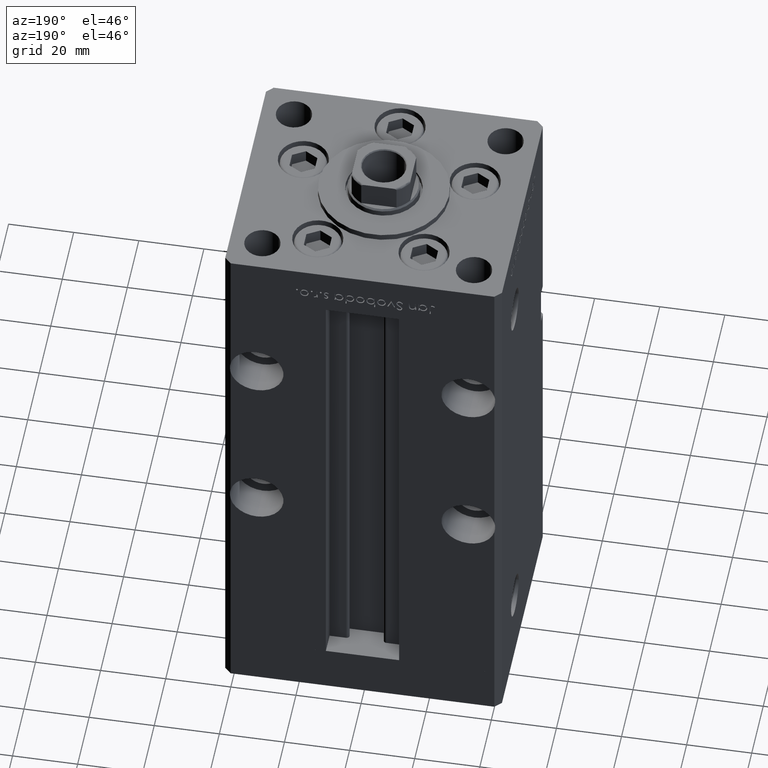
[diagram: clean part render]
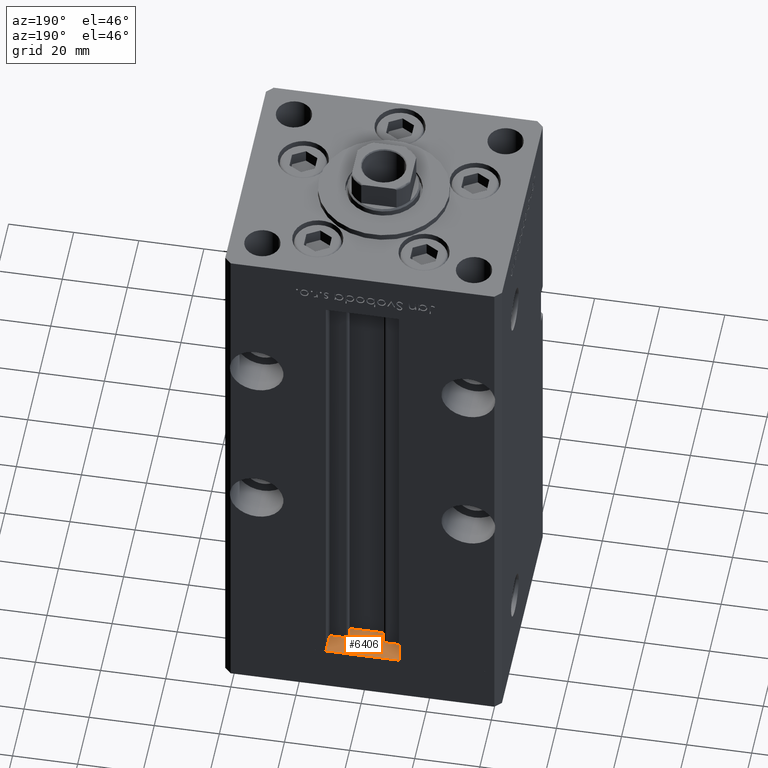
[diagram: same view with one face highlighted and labeled with its STEP entity id]
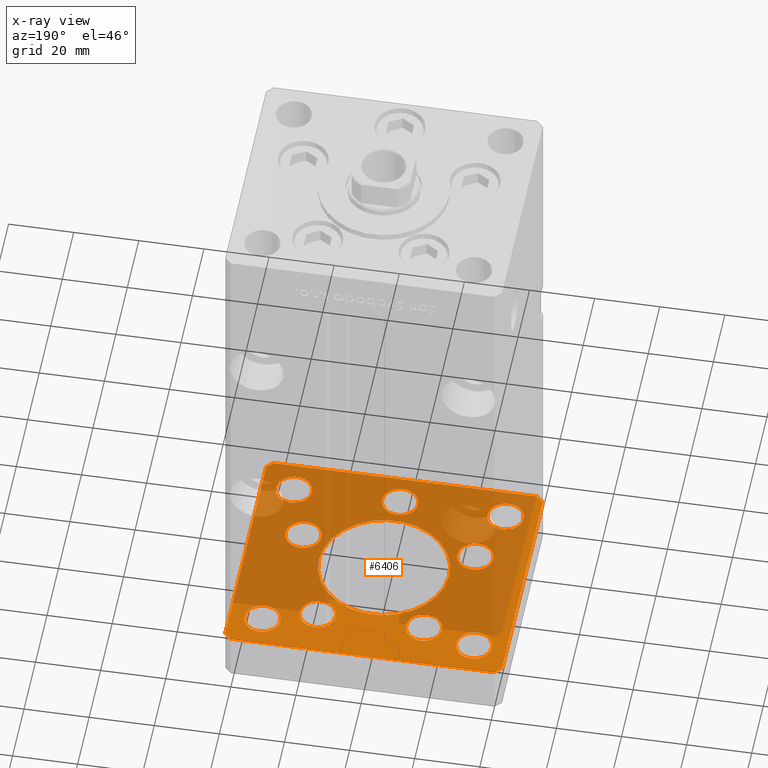
[diagram: x-ray of the same camera — body ghosted, the highlighted face saturated]
A machine part, auxiliary view. The second image highlights one B-rep face of the part: STEP entity #6406.
The next image is the same camera in x-ray: the body ghosted, the highlighted face saturated — about 72% of this face is hidden behind the body in this view.
In plain terms, the highlighted planar face has unit normal (0, 0, -1).
Its self-contained STEP definition (entity closure, byte-faithful):
#37 = CARTESIAN_POINT ( 'NONE',  ( 42.49999999999992895, 35.50000000000000000, -15.00000000000000000 ) ) ;
#631 = DIRECTION ( 'NONE',  ( 0.000000000000000000, -0.000000000000000000, -1.000000000000000000 ) ) ;
#1153 = VERTEX_POINT ( 'NONE', #18283 ) ;
#1231 = VERTEX_POINT ( 'NONE', #23652 ) ;
#1886 = VERTEX_POINT ( 'NONE', #26748 ) ;
#1916 = EDGE_CURVE ( 'NONE', #7529, #49890, #11524, .T. ) ;
#2171 = CARTESIAN_POINT ( 'NONE',  ( -42.50000000000000711, 35.49999999999997158, -15.00000000000000000 ) ) ;
#2275 = VECTOR ( 'NONE', #30948, 1000.000000000000000 ) ;
#3002 = EDGE_CURVE ( 'NONE', #49890, #7529, #48450, .T. ) ;
#3037 = VERTEX_POINT ( 'NONE', #39913 ) ;
#3091 = CIRCLE ( 'NONE', #39999, 5.499999999999998224 ) ;
#3232 = EDGE_LOOP ( 'NONE', ( #15819, #24313 ) ) ;
#3387 = CARTESIAN_POINT ( 'NONE',  ( 3.429011037612589276E-15, -28.00000000000000000, -15.00000000000000000 ) ) ;
#3448 = ORIENTED_EDGE ( 'NONE', *, *, #34120, .F. ) ;
#3499 = ORIENTED_EDGE ( 'NONE', *, *, #31492, .F. ) ;
#3505 = AXIS2_PLACEMENT_3D ( 'NONE', #46983, #30333, #10176 ) ;
#3540 = AXIS2_PLACEMENT_3D ( 'NONE', #47115, #10310, #26706 ) ;
#3618 = CARTESIAN_POINT ( 'NONE',  ( 32.50000000000000000, -27.49999999999999645, -15.00000000000000000 ) ) ;
#3757 = ORIENTED_EDGE ( 'NONE', *, *, #47385, .T. ) ;
#3907 = DIRECTION ( 'NONE',  ( 1.000000000000000000, 0.000000000000000000, 0.000000000000000000 ) ) ;
#4145 = EDGE_CURVE ( 'NONE', #17129, #27152, #47500, .T. ) ;
#4433 = VERTEX_POINT ( 'NONE', #45331 ) ;
#5278 = CARTESIAN_POINT ( 'NONE',  ( 40.49999999999991473, 37.50000000000000711, -15.00000000000000000 ) ) ;
#5738 = VERTEX_POINT ( 'NONE', #7371 ) ;
#5775 = CARTESIAN_POINT ( 'NONE',  ( 0.000000000000000000, 0.000000000000000000, -15.00000000000000000 ) ) ;
#6001 = CIRCLE ( 'NONE', #30014, 5.499999999999998224 ) ;
#6039 = CARTESIAN_POINT ( 'NONE',  ( -21.82291334290543361, 22.74999999999999645, -15.00000000000000000 ) ) ;
#6290 = DIRECTION ( 'NONE',  ( 1.000000000000000000, 0.000000000000000000, 0.000000000000000000 ) ) ;
#6310 = FACE_BOUND ( 'NONE', #3232, .T. ) ;
#6406 = ADVANCED_FACE ( 'NONE', ( #18144, #39364, #14110, #38557, #6310, #27276, #35076, #14379, #14655, #10068, #30757 ), #42840, .F. ) ;
#6918 = AXIS2_PLACEMENT_3D ( 'NONE', #52806, #631, #16792 ) ;
#6943 = ORIENTED_EDGE ( 'NONE', *, *, #48053, .F. ) ;
#6965 = CARTESIAN_POINT ( 'NONE',  ( 0.000000000000000000, 0.000000000000000000, -15.00000000000000000 ) ) ;
#7371 = CARTESIAN_POINT ( 'NONE',  ( 27.00000000000000355, 27.49999999999999645, -15.00000000000000000 ) ) ;
#7470 = ORIENTED_EDGE ( 'NONE', *, *, #41857, .F. ) ;
#7529 = VERTEX_POINT ( 'NONE', #18094 ) ;
#7772 = DIRECTION ( 'NONE',  ( 0.000000000000000000, 0.000000000000000000, 1.000000000000000000 ) ) ;
#7794 = EDGE_CURVE ( 'NONE', #51463, #42269, #40578, .T. ) ;
#8260 = ORIENTED_EDGE ( 'NONE', *, *, #40542, .F. ) ;
#8988 = VECTOR ( 'NONE', #50986, 1000.000000000000000 ) ;
#9016 = ORIENTED_EDGE ( 'NONE', *, *, #30206, .F. ) ;
#9069 = CIRCLE ( 'NONE', #15130, 5.500000000000000000 ) ;
#9326 = CIRCLE ( 'NONE', #14497, 5.499999999999998224 ) ;
#9646 = CARTESIAN_POINT ( 'NONE',  ( -5.499999999999996447, -28.00000000000000000, -15.00000000000000000 ) ) ;
#10068 = FACE_BOUND ( 'NONE', #18004, .T. ) ;
#10176 = DIRECTION ( 'NONE',  ( 1.000000000000000000, 0.000000000000000000, 0.000000000000000000 ) ) ;
#10181 = DIRECTION ( 'NONE',  ( 1.000000000000000000, 0.000000000000000000, 0.000000000000000000 ) ) ;
#10310 = DIRECTION ( 'NONE',  ( 0.000000000000000000, -0.000000000000000000, -1.000000000000000000 ) ) ;
#10497 = EDGE_CURVE ( 'NONE', #33199, #39314, #9069, .T. ) ;
#10590 = CARTESIAN_POINT ( 'NONE',  ( -32.50000000000000000, 27.50000000000000355, -15.00000000000000000 ) ) ;
#10675 = CARTESIAN_POINT ( 'NONE',  ( -32.50000000000000000, -27.49999999999999645, -15.00000000000000000 ) ) ;
#10896 = DIRECTION ( 'NONE',  ( 0.000000000000000000, -0.000000000000000000, -1.000000000000000000 ) ) ;
#11168 = DIRECTION ( 'NONE',  ( 1.000000000000000000, 0.000000000000000000, 0.000000000000000000 ) ) ;
#11226 = DIRECTION ( 'NONE',  ( 0.7071067811865463515, -0.7071067811865487940, 0.000000000000000000 ) ) ;
#11313 = EDGE_CURVE ( 'NONE', #35360, #1153, #42505, .T. ) ;
#11478 = EDGE_CURVE ( 'NONE', #33756, #1231, #42546, .T. ) ;
#11524 = CIRCLE ( 'NONE', #32134, 5.499999999999998224 ) ;
#11545 = CARTESIAN_POINT ( 'NONE',  ( 42.49999999999992895, 35.50000000000000000, -15.00000000000000000 ) ) ;
#11579 = ORIENTED_EDGE ( 'NONE', *, *, #4145, .F. ) ;
#11754 = CARTESIAN_POINT ( 'NONE',  ( -42.50000000000000711, 35.49999999999997158, -15.00000000000000000 ) ) ;
#12444 = AXIS2_PLACEMENT_3D ( 'NONE', #48497, #10896, #47428 ) ;
#12460 = CARTESIAN_POINT ( 'NONE',  ( -27.00000000000000355, -27.49999999999999645, -15.00000000000000000 ) ) ;
#12523 = DIRECTION ( 'NONE',  ( 0.000000000000000000, 0.000000000000000000, 1.000000000000000000 ) ) ;
#12721 = DIRECTION ( 'NONE',  ( -0.000000000000000000, -0.000000000000000000, -1.000000000000000000 ) ) ;
#12990 = EDGE_LOOP ( 'NONE', ( #51315, #46908 ) ) ;
#13217 = EDGE_LOOP ( 'NONE', ( #29270, #3499 ) ) ;
#13269 = CARTESIAN_POINT ( 'NONE',  ( 32.50000000000000000, 27.49999999999999645, -15.00000000000000000 ) ) ;
#13483 = EDGE_CURVE ( 'NONE', #48552, #40690, #38996, .T. ) ;
#13537 = DIRECTION ( 'NONE',  ( -1.000000000000000000, 0.000000000000000000, 0.000000000000000000 ) ) ;
#13776 = EDGE_CURVE ( 'NONE', #33187, #38152, #16054, .T. ) ;
#13806 = DIRECTION ( 'NONE',  ( 1.000000000000000000, 0.000000000000000000, 0.000000000000000000 ) ) ;
#14110 = FACE_BOUND ( 'NONE', #51452, .T. ) ;
#14325 = AXIS2_PLACEMENT_3D ( 'NONE', #34231, #29645, #13537 ) ;
#14379 = FACE_BOUND ( 'NONE', #52163, .T. ) ;
#14497 = AXIS2_PLACEMENT_3D ( 'NONE', #16037, #12523, #23822 ) ;
#14655 = FACE_OUTER_BOUND ( 'NONE', #24855, .T. ) ;
#14675 = VECTOR ( 'NONE', #23638, 1000.000000000000114 ) ;
#15130 = AXIS2_PLACEMENT_3D ( 'NONE', #3387, #40724, #3907 ) ;
#15242 = CARTESIAN_POINT ( 'NONE',  ( 26.39865316429776954, -9.333333333333330373, -15.00000000000000000 ) ) ;
#15819 = ORIENTED_EDGE ( 'NONE', *, *, #11313, .F. ) ;
#16037 = CARTESIAN_POINT ( 'NONE',  ( -32.50000000000000000, 27.50000000000000355, -15.00000000000000000 ) ) ;
#16054 = CIRCLE ( 'NONE', #46048, 5.499999999999998224 ) ;
#16263 = CARTESIAN_POINT ( 'NONE',  ( 40.49999999999991473, 37.50000000000000711, -15.00000000000000000 ) ) ;
#16266 = DIRECTION ( 'NONE',  ( -0.000000000000000000, -0.000000000000000000, -1.000000000000000000 ) ) ;
#16387 = CARTESIAN_POINT ( 'NONE',  ( 40.50000000000000000, -37.50000000000000711, -15.00000000000000000 ) ) ;
#16792 = DIRECTION ( 'NONE',  ( 1.000000000000000000, 0.000000000000000000, 0.000000000000000000 ) ) ;
#17129 = VERTEX_POINT ( 'NONE', #39375 ) ;
#17390 = CARTESIAN_POINT ( 'NONE',  ( -40.50000000000000711, 37.49999999999997868, -15.00000000000000000 ) ) ;
#17646 = CARTESIAN_POINT ( 'NONE',  ( -10.82291334290543183, 22.74999999999999645, -15.00000000000000000 ) ) ;
#17881 = DIRECTION ( 'NONE',  ( 0.000000000000000000, -0.000000000000000000, -1.000000000000000000 ) ) ;
#18004 = EDGE_LOOP ( 'NONE', ( #7470, #25241 ) ) ;
#18094 = CARTESIAN_POINT ( 'NONE',  ( -20.89865316429777309, -9.333333333333337478, -15.00000000000000000 ) ) ;
#18144 = FACE_BOUND ( 'NONE', #19983, .T. ) ;
#18225 = ORIENTED_EDGE ( 'NONE', *, *, #27319, .F. ) ;
#18283 = CARTESIAN_POINT ( 'NONE',  ( 10.82291334290542473, 22.75000000000000000, -15.00000000000000000 ) ) ;
#18914 = DIRECTION ( 'NONE',  ( -1.000000000000000000, -3.426614273534436165E-16, 0.000000000000000000 ) ) ;
#18950 = DIRECTION ( 'NONE',  ( 1.000000000000000000, 0.000000000000000000, 0.000000000000000000 ) ) ;
#19183 = EDGE_CURVE ( 'NONE', #42257, #52117, #45373, .T. ) ;
#19344 = LINE ( 'NONE', #16387, #29881 ) ;
#19648 = DIRECTION ( 'NONE',  ( -1.172770800660376741E-15, 1.000000000000000000, 0.000000000000000000 ) ) ;
#19983 = EDGE_LOOP ( 'NONE', ( #41493, #47701 ) ) ;
#20202 = CARTESIAN_POINT ( 'NONE',  ( -16.32291334290543006, 22.74999999999999645, -15.00000000000000000 ) ) ;
#21076 = CARTESIAN_POINT ( 'NONE',  ( -31.89865316429776954, -9.333333333333337478, -15.00000000000000000 ) ) ;
#22252 = ORIENTED_EDGE ( 'NONE', *, *, #10497, .F. ) ;
#22670 = DIRECTION ( 'NONE',  ( 1.000000000000000000, 0.000000000000000000, 0.000000000000000000 ) ) ;
#23259 = DIRECTION ( 'NONE',  ( 0.000000000000000000, -0.000000000000000000, -1.000000000000000000 ) ) ;
#23403 = CARTESIAN_POINT ( 'NONE',  ( 42.50000000000000711, -35.50000000000000000, -15.00000000000000000 ) ) ;
#23524 = CARTESIAN_POINT ( 'NONE',  ( -26.39865316429776954, -9.333333333333337478, -15.00000000000000000 ) ) ;
#23638 = DIRECTION ( 'NONE',  ( -0.7071067811865474617, 0.7071067811865474617, 0.000000000000000000 ) ) ;
#23652 = CARTESIAN_POINT ( 'NONE',  ( 38.00000000000000000, -27.49999999999999645, -15.00000000000000000 ) ) ;
#23675 = EDGE_CURVE ( 'NONE', #1886, #34110, #9326, .T. ) ;
#23822 = DIRECTION ( 'NONE',  ( 1.000000000000000000, 0.000000000000000000, 0.000000000000000000 ) ) ;
#24167 = DIRECTION ( 'NONE',  ( 0.7071067811865474617, 0.7071067811865474617, 0.000000000000000000 ) ) ;
#24171 = DIRECTION ( 'NONE',  ( 1.000000000000000000, 0.000000000000000000, 0.000000000000000000 ) ) ;
#24313 = ORIENTED_EDGE ( 'NONE', *, *, #52746, .F. ) ;
#24498 = EDGE_LOOP ( 'NONE', ( #41751, #3448 ) ) ;
#24667 = VERTEX_POINT ( 'NONE', #12460 ) ;
#24802 = CIRCLE ( 'NONE', #31681, 5.499999999999998224 ) ;
#24855 = EDGE_LOOP ( 'NONE', ( #9016, #27203, #18225, #51733, #40007, #52754, #8260, #11579 ) ) ;
#25241 = ORIENTED_EDGE ( 'NONE', *, *, #11478, .F. ) ;
#25262 = CARTESIAN_POINT ( 'NONE',  ( 20.89865316429777309, -9.333333333333330373, -15.00000000000000000 ) ) ;
#25393 = CIRCLE ( 'NONE', #36583, 5.500000000000000000 ) ;
#25802 = ORIENTED_EDGE ( 'NONE', *, *, #3002, .F. ) ;
#26211 = EDGE_CURVE ( 'NONE', #38152, #33187, #6001, .T. ) ;
#26460 = DIRECTION ( 'NONE',  ( -0.000000000000000000, 0.000000000000000000, 1.000000000000000000 ) ) ;
#26546 = CARTESIAN_POINT ( 'NONE',  ( -40.49999999999999289, -37.50000000000002132, -15.00000000000000000 ) ) ;
#26658 = CIRCLE ( 'NONE', #3505, 20.00000000000000000 ) ;
#26663 = AXIS2_PLACEMENT_3D ( 'NONE', #44590, #7772, #24171 ) ;
#26706 = DIRECTION ( 'NONE',  ( 1.000000000000000000, 0.000000000000000000, 0.000000000000000000 ) ) ;
#26748 = CARTESIAN_POINT ( 'NONE',  ( -38.00000000000000000, 27.50000000000000355, -15.00000000000000000 ) ) ;
#26756 = ORIENTED_EDGE ( 'NONE', *, *, #31510, .T. ) ;
#27002 = DIRECTION ( 'NONE',  ( 1.000000000000000000, 0.000000000000000000, 0.000000000000000000 ) ) ;
#27145 = CIRCLE ( 'NONE', #48626, 5.499999999999998224 ) ;
#27152 = VERTEX_POINT ( 'NONE', #28174 ) ;
#27185 = CIRCLE ( 'NONE', #14325, 5.499999999999998224 ) ;
#27203 = ORIENTED_EDGE ( 'NONE', *, *, #13483, .F. ) ;
#27276 = FACE_BOUND ( 'NONE', #24498, .T. ) ;
#27319 = EDGE_CURVE ( 'NONE', #44142, #48552, #33786, .T. ) ;
#27322 = DIRECTION ( 'NONE',  ( 0.000000000000000000, -0.000000000000000000, -1.000000000000000000 ) ) ;
#28033 = VECTOR ( 'NONE', #11226, 1000.000000000000000 ) ;
#28174 = CARTESIAN_POINT ( 'NONE',  ( 40.50000000000000000, -37.50000000000000711, -15.00000000000000000 ) ) ;
#28771 = EDGE_CURVE ( 'NONE', #34110, #1886, #3091, .T. ) ;
#28799 = CARTESIAN_POINT ( 'NONE',  ( 20.00000000000000000, 0.000000000000000000, -15.00000000000000000 ) ) ;
#28900 = VECTOR ( 'NONE', #18914, 1000.000000000000000 ) ;
#29094 = DIRECTION ( 'NONE',  ( -1.000000000000000000, 0.000000000000000000, 0.000000000000000000 ) ) ;
#29270 = ORIENTED_EDGE ( 'NONE', *, *, #30139, .F. ) ;
#29645 = DIRECTION ( 'NONE',  ( -0.000000000000000000, -0.000000000000000000, -1.000000000000000000 ) ) ;
#29881 = VECTOR ( 'NONE', #24167, 1000.000000000000114 ) ;
#29898 = AXIS2_PLACEMENT_3D ( 'NONE', #6965, #52096, #10181 ) ;
#30014 = AXIS2_PLACEMENT_3D ( 'NONE', #50645, #17881, #27002 ) ;
#30139 = EDGE_CURVE ( 'NONE', #24667, #3037, #27145, .T. ) ;
#30206 = EDGE_CURVE ( 'NONE', #40690, #17129, #52054, .T. ) ;
#30333 = DIRECTION ( 'NONE',  ( 0.000000000000000000, -0.000000000000000000, -1.000000000000000000 ) ) ;
#30737 = CARTESIAN_POINT ( 'NONE',  ( 27.00000000000000355, -27.49999999999999645, -15.00000000000000000 ) ) ;
#30757 = FACE_BOUND ( 'NONE', #13217, .T. ) ;
#30948 = DIRECTION ( 'NONE',  ( 9.773090005503140331E-17, -1.000000000000000000, 0.000000000000000000 ) ) ;
#31492 = EDGE_CURVE ( 'NONE', #3037, #24667, #27185, .T. ) ;
#31510 = EDGE_CURVE ( 'NONE', #4433, #5738, #38323, .T. ) ;
#31681 = AXIS2_PLACEMENT_3D ( 'NONE', #3618, #16266, #52266 ) ;
#31951 = CARTESIAN_POINT ( 'NONE',  ( 42.50000000000000711, -35.50000000000000000, -15.00000000000000000 ) ) ;
#32134 = AXIS2_PLACEMENT_3D ( 'NONE', #23524, #23259, #11168 ) ;
#32464 = EDGE_CURVE ( 'NONE', #36652, #44142, #33772, .T. ) ;
#33187 = VERTEX_POINT ( 'NONE', #25262 ) ;
#33199 = VERTEX_POINT ( 'NONE', #9646 ) ;
#33585 = CIRCLE ( 'NONE', #3540, 5.500000000000001776 ) ;
#33756 = VERTEX_POINT ( 'NONE', #30737 ) ;
#33772 = LINE ( 'NONE', #5278, #28900 ) ;
#33786 = LINE ( 'NONE', #17390, #39471 ) ;
#34026 = ORIENTED_EDGE ( 'NONE', *, *, #1916, .F. ) ;
#34110 = VERTEX_POINT ( 'NONE', #44377 ) ;
#34120 = EDGE_CURVE ( 'NONE', #38656, #52298, #25393, .T. ) ;
#34231 = CARTESIAN_POINT ( 'NONE',  ( -32.50000000000000000, -27.49999999999999645, -15.00000000000000000 ) ) ;
#34716 = AXIS2_PLACEMENT_3D ( 'NONE', #5775, #26460, #18950 ) ;
#35007 = DIRECTION ( 'NONE',  ( 1.000000000000000000, 0.000000000000000000, 0.000000000000000000 ) ) ;
#35076 = FACE_BOUND ( 'NONE', #45904, .T. ) ;
#35360 = VERTEX_POINT ( 'NONE', #49912 ) ;
#36074 = DIRECTION ( 'NONE',  ( 1.000000000000000000, 0.000000000000000000, 0.000000000000000000 ) ) ;
#36529 = LINE ( 'NONE', #11545, #14675 ) ;
#36583 = AXIS2_PLACEMENT_3D ( 'NONE', #20202, #41138, #36074 ) ;
#36652 = VERTEX_POINT ( 'NONE', #16263 ) ;
#37807 = DIRECTION ( 'NONE',  ( -0.7071067811865463515, -0.7071067811865487940, 0.000000000000000000 ) ) ;
#38152 = VERTEX_POINT ( 'NONE', #42829 ) ;
#38237 = DIRECTION ( 'NONE',  ( 0.000000000000000000, 0.000000000000000000, 1.000000000000000000 ) ) ;
#38323 = CIRCLE ( 'NONE', #46912, 5.499999999999998224 ) ;
#38557 = FACE_BOUND ( 'NONE', #12990, .T. ) ;
#38656 = VERTEX_POINT ( 'NONE', #6039 ) ;
#38659 = CARTESIAN_POINT ( 'NONE',  ( -20.00000000000000000, 2.449293598294706513E-15, -15.00000000000000000 ) ) ;
#38703 = CIRCLE ( 'NONE', #41281, 5.500000000000000000 ) ;
#38996 = LINE ( 'NONE', #2171, #2275 ) ;
#39014 = CARTESIAN_POINT ( 'NONE',  ( 3.429011037612589276E-15, -28.00000000000000000, -15.00000000000000000 ) ) ;
#39314 = VERTEX_POINT ( 'NONE', #39781 ) ;
#39364 = FACE_BOUND ( 'NONE', #49519, .T. ) ;
#39375 = CARTESIAN_POINT ( 'NONE',  ( -40.49999999999999289, -37.50000000000002132, -15.00000000000000000 ) ) ;
#39471 = VECTOR ( 'NONE', #37807, 1000.000000000000000 ) ;
#39705 = DIRECTION ( 'NONE',  ( -1.000000000000000000, 0.000000000000000000, 0.000000000000000000 ) ) ;
#39781 = CARTESIAN_POINT ( 'NONE',  ( 5.500000000000003553, -28.00000000000000000, -15.00000000000000000 ) ) ;
#39913 = CARTESIAN_POINT ( 'NONE',  ( -38.00000000000000000, -27.49999999999999645, -15.00000000000000000 ) ) ;
#39999 = AXIS2_PLACEMENT_3D ( 'NONE', #10590, #46594, #6290 ) ;
#40007 = ORIENTED_EDGE ( 'NONE', *, *, #47324, .F. ) ;
#40542 = EDGE_CURVE ( 'NONE', #27152, #51463, #19344, .T. ) ;
#40578 = LINE ( 'NONE', #23403, #46738 ) ;
#40690 = VERTEX_POINT ( 'NONE', #41851 ) ;
#40724 = DIRECTION ( 'NONE',  ( 0.000000000000000000, -0.000000000000000000, -1.000000000000000000 ) ) ;
#41138 = DIRECTION ( 'NONE',  ( 0.000000000000000000, -0.000000000000000000, -1.000000000000000000 ) ) ;
#41281 = AXIS2_PLACEMENT_3D ( 'NONE', #39014, #50305, #35007 ) ;
#41493 = ORIENTED_EDGE ( 'NONE', *, *, #19183, .F. ) ;
#41751 = ORIENTED_EDGE ( 'NONE', *, *, #50464, .F. ) ;
#41851 = CARTESIAN_POINT ( 'NONE',  ( -42.50000000000000000, -35.50000000000000711, -15.00000000000000000 ) ) ;
#41857 = EDGE_CURVE ( 'NONE', #1231, #33756, #24802, .T. ) ;
#42257 = VERTEX_POINT ( 'NONE', #28799 ) ;
#42269 = VERTEX_POINT ( 'NONE', #37 ) ;
#42505 = CIRCLE ( 'NONE', #49397, 5.500000000000001776 ) ;
#42546 = CIRCLE ( 'NONE', #48599, 5.499999999999998224 ) ;
#42829 = CARTESIAN_POINT ( 'NONE',  ( 31.89865316429776954, -9.333333333333330373, -15.00000000000000000 ) ) ;
#42840 = PLANE ( 'NONE',  #34716 ) ;
#43350 = CARTESIAN_POINT ( 'NONE',  ( 16.32291334290542295, 22.75000000000000000, -15.00000000000000000 ) ) ;
#44142 = VERTEX_POINT ( 'NONE', #49166 ) ;
#44377 = CARTESIAN_POINT ( 'NONE',  ( -27.00000000000000355, 27.50000000000000355, -15.00000000000000000 ) ) ;
#44590 = CARTESIAN_POINT ( 'NONE',  ( 32.50000000000000000, 27.49999999999999645, -15.00000000000000000 ) ) ;
#45331 = CARTESIAN_POINT ( 'NONE',  ( 38.00000000000000000, 27.49999999999999645, -15.00000000000000000 ) ) ;
#45373 = CIRCLE ( 'NONE', #29898, 20.00000000000000000 ) ;
#45904 = EDGE_LOOP ( 'NONE', ( #26756, #3757 ) ) ;
#46048 = AXIS2_PLACEMENT_3D ( 'NONE', #15242, #27322, #52305 ) ;
#46360 = ORIENTED_EDGE ( 'NONE', *, *, #28771, .T. ) ;
#46594 = DIRECTION ( 'NONE',  ( 0.000000000000000000, 0.000000000000000000, 1.000000000000000000 ) ) ;
#46738 = VECTOR ( 'NONE', #19648, 1000.000000000000000 ) ;
#46908 = ORIENTED_EDGE ( 'NONE', *, *, #13776, .F. ) ;
#46912 = AXIS2_PLACEMENT_3D ( 'NONE', #13269, #38237, #13806 ) ;
#46983 = CARTESIAN_POINT ( 'NONE',  ( 0.000000000000000000, 0.000000000000000000, -15.00000000000000000 ) ) ;
#47115 = CARTESIAN_POINT ( 'NONE',  ( 16.32291334290542295, 22.75000000000000000, -15.00000000000000000 ) ) ;
#47324 = EDGE_CURVE ( 'NONE', #42269, #36652, #36529, .T. ) ;
#47385 = EDGE_CURVE ( 'NONE', #5738, #4433, #48124, .T. ) ;
#47428 = DIRECTION ( 'NONE',  ( 1.000000000000000000, 0.000000000000000000, 0.000000000000000000 ) ) ;
#47500 = LINE ( 'NONE', #26546, #8988 ) ;
#47701 = ORIENTED_EDGE ( 'NONE', *, *, #51132, .F. ) ;
#48034 = CARTESIAN_POINT ( 'NONE',  ( -42.50000000000000000, -35.50000000000000711, -15.00000000000000000 ) ) ;
#48053 = EDGE_CURVE ( 'NONE', #39314, #33199, #38703, .T. ) ;
#48124 = CIRCLE ( 'NONE', #26663, 5.499999999999998224 ) ;
#48450 = CIRCLE ( 'NONE', #12444, 5.499999999999998224 ) ;
#48497 = CARTESIAN_POINT ( 'NONE',  ( -26.39865316429776954, -9.333333333333337478, -15.00000000000000000 ) ) ;
#48552 = VERTEX_POINT ( 'NONE', #11754 ) ;
#48599 = AXIS2_PLACEMENT_3D ( 'NONE', #49511, #12721, #29094 ) ;
#48626 = AXIS2_PLACEMENT_3D ( 'NONE', #10675, #50971, #39705 ) ;
#49166 = CARTESIAN_POINT ( 'NONE',  ( -40.50000000000000711, 37.49999999999997868, -15.00000000000000000 ) ) ;
#49341 = ORIENTED_EDGE ( 'NONE', *, *, #23675, .T. ) ;
#49397 = AXIS2_PLACEMENT_3D ( 'NONE', #43350, #51416, #22670 ) ;
#49511 = CARTESIAN_POINT ( 'NONE',  ( 32.50000000000000000, -27.49999999999999645, -15.00000000000000000 ) ) ;
#49519 = EDGE_LOOP ( 'NONE', ( #34026, #25802 ) ) ;
#49890 = VERTEX_POINT ( 'NONE', #21076 ) ;
#49912 = CARTESIAN_POINT ( 'NONE',  ( 21.82291334290542650, 22.75000000000000000, -15.00000000000000000 ) ) ;
#50305 = DIRECTION ( 'NONE',  ( 0.000000000000000000, -0.000000000000000000, -1.000000000000000000 ) ) ;
#50464 = EDGE_CURVE ( 'NONE', #52298, #38656, #52416, .T. ) ;
#50645 = CARTESIAN_POINT ( 'NONE',  ( 26.39865316429776954, -9.333333333333330373, -15.00000000000000000 ) ) ;
#50971 = DIRECTION ( 'NONE',  ( -0.000000000000000000, -0.000000000000000000, -1.000000000000000000 ) ) ;
#50986 = DIRECTION ( 'NONE',  ( 1.000000000000000000, 1.713307136767217096E-16, 0.000000000000000000 ) ) ;
#51132 = EDGE_CURVE ( 'NONE', #52117, #42257, #26658, .T. ) ;
#51315 = ORIENTED_EDGE ( 'NONE', *, *, #26211, .F. ) ;
#51416 = DIRECTION ( 'NONE',  ( 0.000000000000000000, -0.000000000000000000, -1.000000000000000000 ) ) ;
#51452 = EDGE_LOOP ( 'NONE', ( #6943, #22252 ) ) ;
#51463 = VERTEX_POINT ( 'NONE', #31951 ) ;
#51733 = ORIENTED_EDGE ( 'NONE', *, *, #32464, .F. ) ;
#52054 = LINE ( 'NONE', #48034, #28033 ) ;
#52096 = DIRECTION ( 'NONE',  ( 0.000000000000000000, -0.000000000000000000, -1.000000000000000000 ) ) ;
#52117 = VERTEX_POINT ( 'NONE', #38659 ) ;
#52163 = EDGE_LOOP ( 'NONE', ( #46360, #49341 ) ) ;
#52266 = DIRECTION ( 'NONE',  ( -1.000000000000000000, 0.000000000000000000, 0.000000000000000000 ) ) ;
#52298 = VERTEX_POINT ( 'NONE', #17646 ) ;
#52305 = DIRECTION ( 'NONE',  ( 1.000000000000000000, 0.000000000000000000, 0.000000000000000000 ) ) ;
#52416 = CIRCLE ( 'NONE', #6918, 5.500000000000000000 ) ;
#52746 = EDGE_CURVE ( 'NONE', #1153, #35360, #33585, .T. ) ;
#52754 = ORIENTED_EDGE ( 'NONE', *, *, #7794, .F. ) ;
#52806 = CARTESIAN_POINT ( 'NONE',  ( -16.32291334290543006, 22.74999999999999645, -15.00000000000000000 ) ) ;